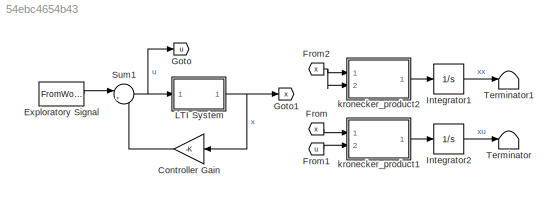
MODEL slx_54ebc4654b43
KIND model
CONFIG AbsTol = auto
CONFIG EnableMultiTasking = off
CONFIG FixedStep = auto
CONFIG MaxStep = auto
CONFIG MinStep = auto
CONFIG RelTol = 1e-3
CONFIG SampleTimeConstraint = Unconstrained
CONFIG SolverName = VariableStepAuto
CONFIG StartTime = 0.0
CONFIG StopTime = 1
BLOCK [Gain] Controller Gain
  Gain = -K
  Multiplication = Matrix(K*u)
BLOCK [FromWorkspace] Exploratory Signal
  OutputAfterFinalValue = Setting to zero
  SampleTime = T_smpl_sim
  VariableName = u_exp
BLOCK [From] From
  GotoTag = x
BLOCK [From] From1
  GotoTag = u
BLOCK [From] From2
  GotoTag = x
BLOCK [Goto] Goto
  GotoTag = u
BLOCK [Goto] Goto1
  GotoTag = x
BLOCK [Integrator] Integrator1
  Ports = [1, 1]
BLOCK [Integrator] Integrator2
  Ports = [1, 1]
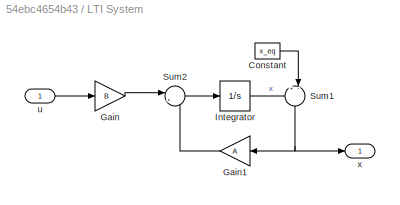
BLOCK [SubSystem] LTI System
  Ports = [1, 1]
  RequestExecContextInheritance = off
BLOCK [Constant] LTI System/Constant
  Value = x_eq
BLOCK [Gain] LTI System/Gain
  Gain = B
  Multiplication = Matrix(K*u)
BLOCK [Gain] LTI System/Gain1
  Gain = A
  Multiplication = Matrix(K*u)
  NameLocation = top
BLOCK [Integrator] LTI System/Integrator
  InitialCondition = x0
  Ports = [1, 1]
BLOCK [Sum] LTI System/Sum1
  Inputs = +-|
  NameLocation = left
  Ports = [2, 1]
BLOCK [Sum] LTI System/Sum2
  Inputs = |++
  Ports = [2, 1]
BLOCK [Inport] LTI System/u
BLOCK [Outport] LTI System/x
BLOCK [Sum] Sum1
  Inputs = |++
  Ports = [2, 1]
BLOCK [Terminator] Terminator
BLOCK [Terminator] Terminator1
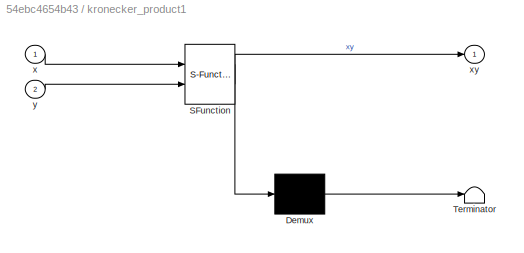
BLOCK [SubSystem] kronecker_product1
  ErrorFcn = Stateflow.Translate.translate
  PermitHierarchicalResolution = ExplicitOnly
  Ports = [2, 1]
  RequestExecContextInheritance = off
  SFBlockType = MATLAB Function
  TreatAsAtomicUnit = on
BLOCK [Demux] kronecker_product1/ Demux 
  Outputs = 1
  Ports = [1, 1]
BLOCK [S-Function] kronecker_product1/ SFunction 
  EnableBusSupport = on
  FunctionName = sf_sfun
  PortCounts = [2 2]
  Ports = [2, 2]
  SFcnIsStateOwnerBlock = off
  SFunctionDeploymentMode = off
  Tag = Stateflow S-Function 3
BLOCK [Terminator] kronecker_product1/ Terminator 
BLOCK [Inport] kronecker_product1/x
BLOCK [Outport] kronecker_product1/xy
BLOCK [Inport] kronecker_product1/y
  Port = 2
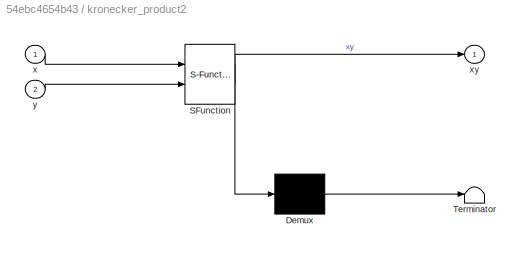
BLOCK [SubSystem] kronecker_product2
  ErrorFcn = Stateflow.Translate.translate
  PermitHierarchicalResolution = ExplicitOnly
  Ports = [2, 1]
  RequestExecContextInheritance = off
  SFBlockType = MATLAB Function
  TreatAsAtomicUnit = on
BLOCK [Demux] kronecker_product2/ Demux 
  Outputs = 1
  Ports = [1, 1]
BLOCK [S-Function] kronecker_product2/ SFunction 
  EnableBusSupport = on
  FunctionName = sf_sfun
  PortCounts = [2 2]
  Ports = [2, 2]
  SFcnIsStateOwnerBlock = off
  SFunctionDeploymentMode = off
  Tag = Stateflow S-Function 1
BLOCK [Terminator] kronecker_product2/ Terminator 
BLOCK [Inport] kronecker_product2/x
BLOCK [Outport] kronecker_product2/xy
BLOCK [Inport] kronecker_product2/y
  Port = 2
LINE Controller Gain:1 -> Sum1:2
LINE Exploratory Signal:1 -> Sum1:1
LINE From1:1 -> kronecker_product1:2
NET From2:1 -> kronecker_product2:1, kronecker_product2:2
LINE From:1 -> kronecker_product1:1
LINE Integrator1:1 -> Terminator1:1
LINE Integrator2:1 -> Terminator:1
LINE LTI System/Constant:1 -> LTI System/Sum1:2
LINE LTI System/Gain1:1 -> LTI System/Sum2:2
LINE LTI System/Gain:1 -> LTI System/Sum2:1
LINE LTI System/Integrator:1 -> LTI System/Sum1:1
NET LTI System/Sum1:1 -> LTI System/Gain1:1, LTI System/x:1
LINE LTI System/Sum2:1 -> LTI System/Integrator:1
LINE LTI System/u:1 -> LTI System/Gain:1
NET LTI System:1 -> Controller Gain:1, Goto1:1
NET Sum1:1 -> Goto:1, LTI System:1
LINE kronecker_product1:1 -> Integrator2:1
LINE kronecker_product2:1 -> Integrator1:1
note: NET lines group one-source signal fan-out (src -> all destinations, sorted); 1:1 wires keep LINE
CHART kronecker_product1 states=1 transitions=1
  STATE_LABEL 'eML_blk_kernel()'
  STATE_LABEL "SCRIPT:\nfunction xy = kron(x,y)\n\ntemp = x*y';\nxy = temp(:);\nend\n"
CHART kronecker_product2 states=1 transitions=1
  STATE_LABEL 'eML_blk_kernel()'
  STATE_LABEL "SCRIPT:\nfunction xy = kron(x,y)\n\ntemp = x*y';\nxy = temp(:);\nend\n"
CHART  states=0 transitions=0
CHART  states=0 transitions=0
